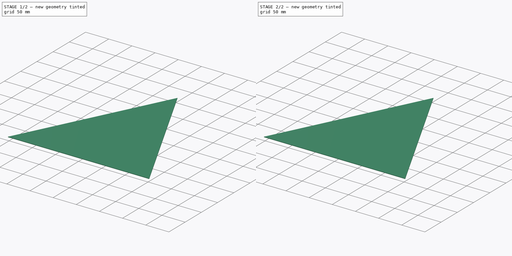
[diagram: build sequence overview — one tinted view per stage of 2, left to right]
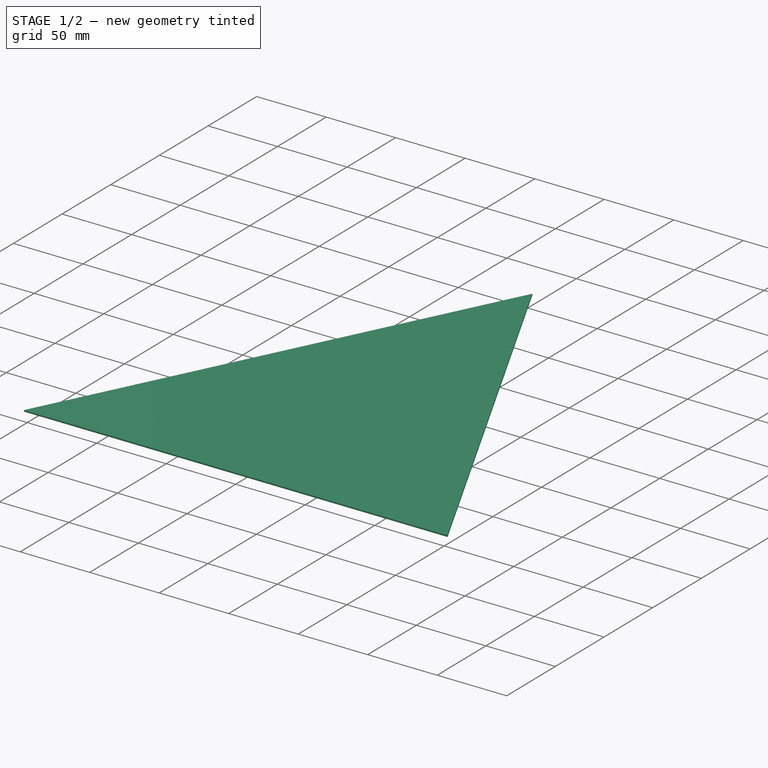
[diagram: stage 1 of 2 — iso view after this stage's code; geometry added in this stage tinted green]
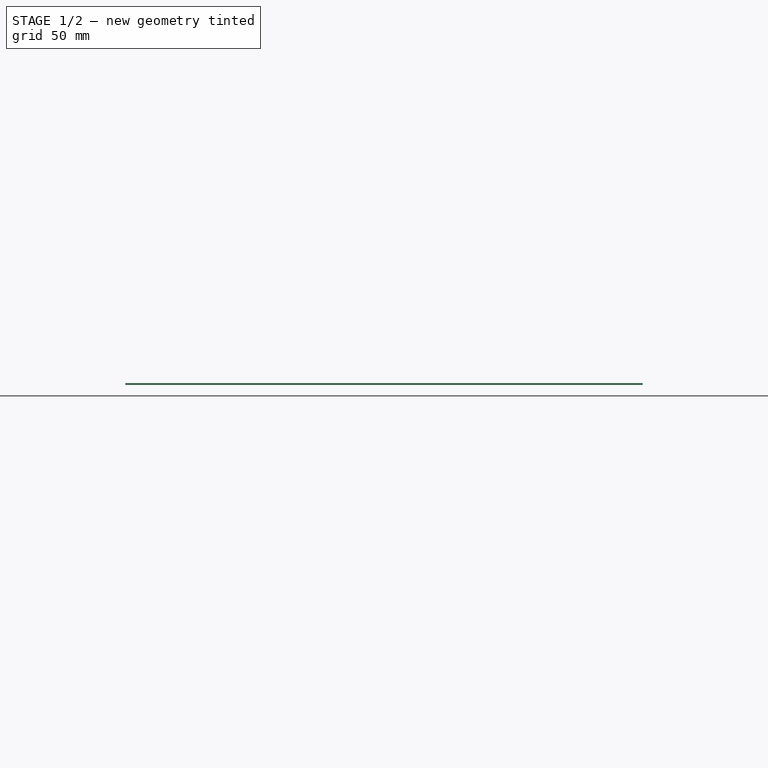
[diagram: stage 1 of 2 — front view after this stage's code; geometry added in this stage tinted green]
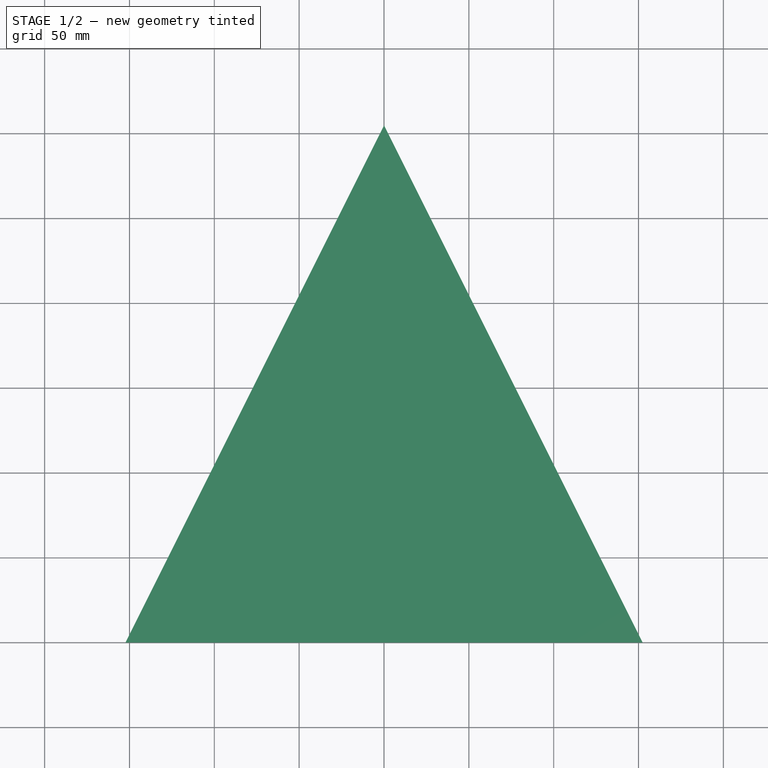
[diagram: stage 1 of 2 — top view after this stage's code; geometry added in this stage tinted green]
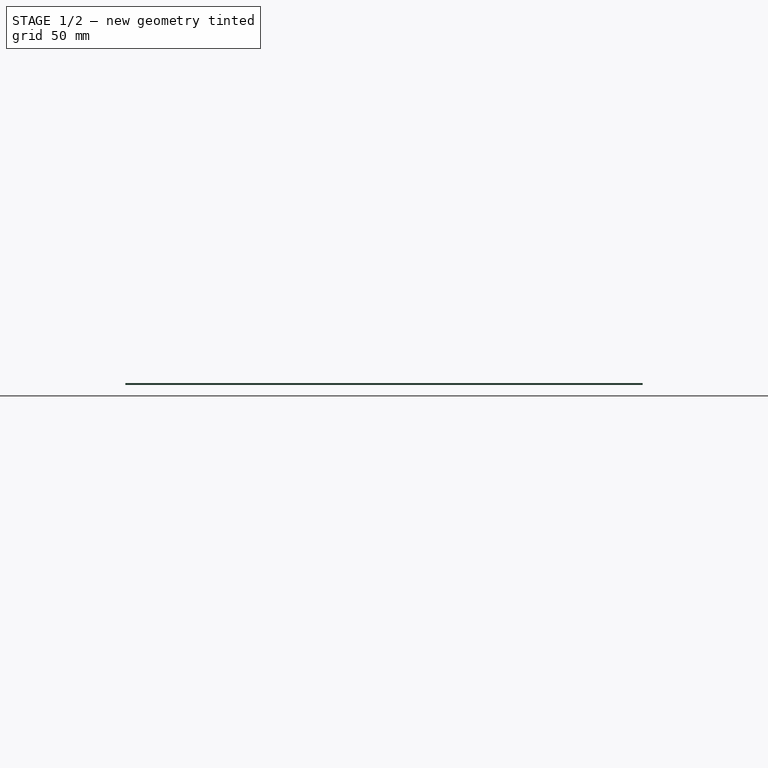
[diagram: stage 1 of 2 — right view after this stage's code; geometry added in this stage tinted green]
FCSTD DOCUMENT  (FreeCAD 0.19R22411 (Git))
Label: ala
License: All rights reserved
LicenseURL: http://en.wikipedia.org/wiki/All_rights_reserved
objects: Sketcher::SketchObject×2, PartDesign::Pad×2, PartDesign::Body×1
note: 7 computed .brp shape members not serialized (recipe doc carries the construction recipe); baked Part::Feature solids carry a one-line shape summary decoded from their .brp

FEATURE [Sketcher::SketchObject] Sketch
  sketch-geometry (4):
    g0: LineSegment StartX=-152.4 StartY=0 StartZ=0 EndX=0 EndY=304.8 EndZ=0
    g1: LineSegment StartX=3.3e-15 StartY=304.8 StartZ=0 EndX=152.4 EndY=0 EndZ=0
    g2: LineSegment StartX=-152.4 StartY=0 StartZ=0 EndX=0 EndY=0 EndZ=0
    g3: LineSegment StartX=0 StartY=0 StartZ=0 EndX=152.4 EndY=0 EndZ=0
  constraints (11):
    c: Coincident(g1,g0)
    c: DistanceY(g0,g0) = 304.8
    c: Coincident(g3,g1)
    c: Coincident(g2,g3)
    c: Horizontal(g2)
    c: Horizontal(g3)
    c: Equal(g2,g3)
    c: Coincident(g2,g0)
    c: Coincident(g2,g-1)
    c: DistanceX(g0,g1) = 304.8
    c: Equal(g0,g1)
FEATURE [PartDesign::Pad] Pad
  AllowMultiFace = false
  Length = 1
  Length2 = 100
  Profile = -> Sketch
  Type = 0
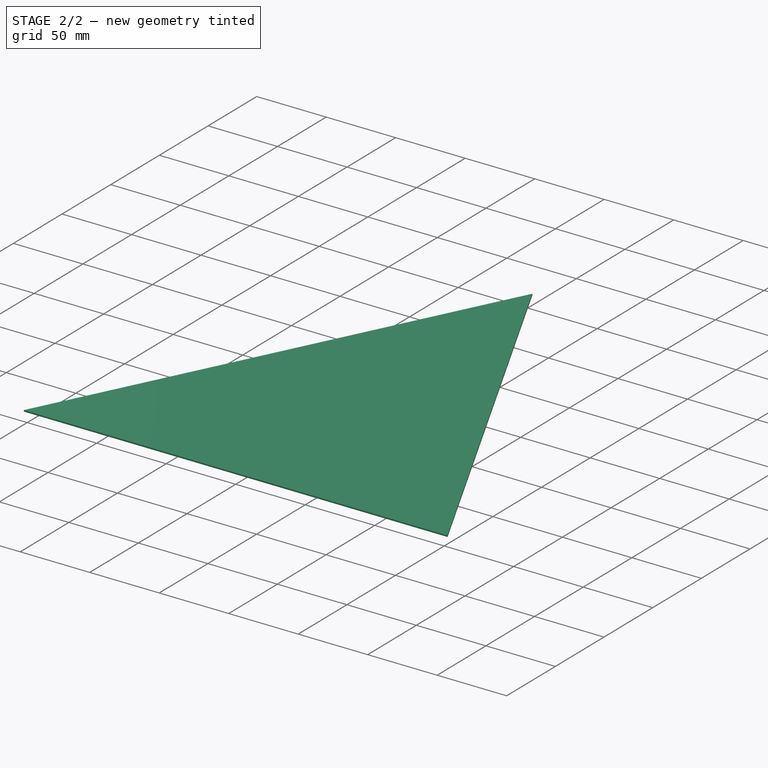
[diagram: stage 2 of 2 — iso view after this stage's code; geometry added in this stage tinted green]
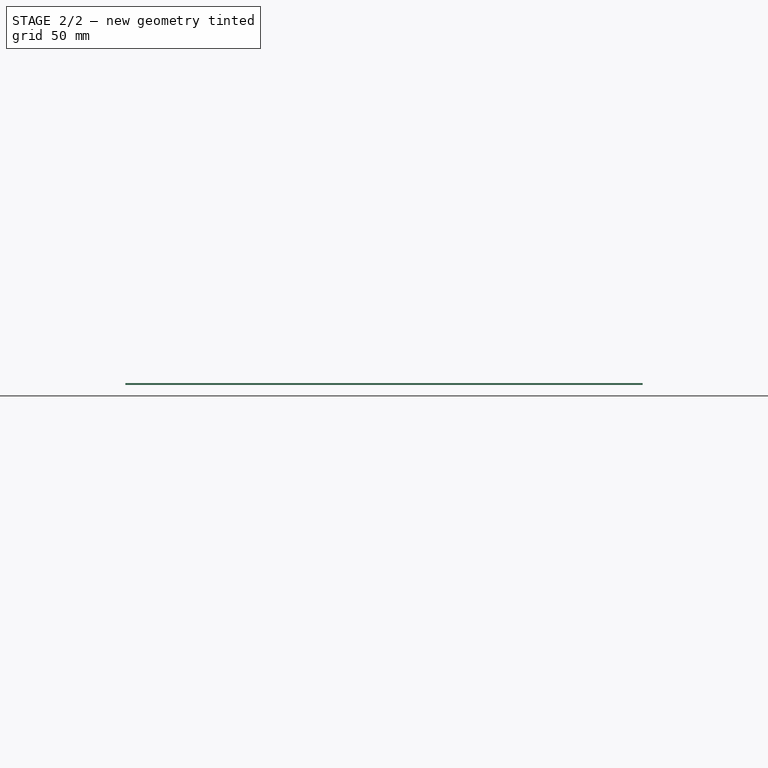
[diagram: stage 2 of 2 — front view after this stage's code; geometry added in this stage tinted green]
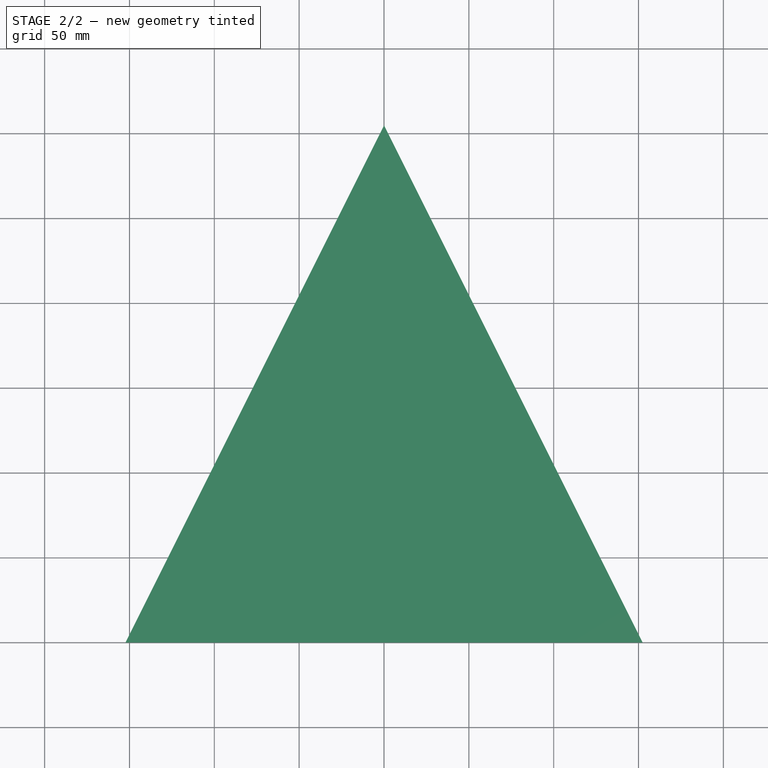
[diagram: stage 2 of 2 — top view after this stage's code; geometry added in this stage tinted green]
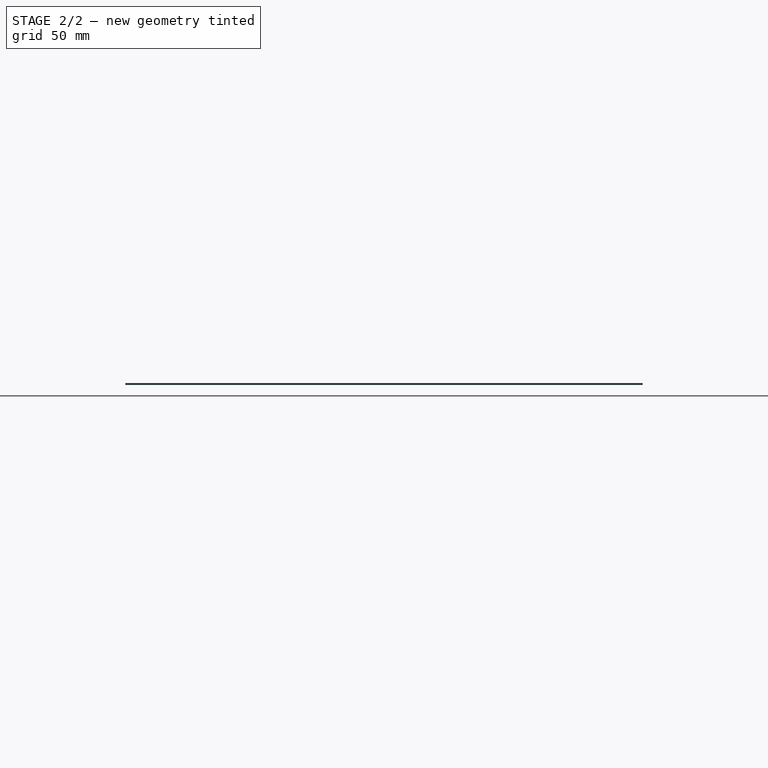
[diagram: stage 2 of 2 — right view after this stage's code; geometry added in this stage tinted green]
FEATURE [Sketcher::SketchObject] Sketch001
  MapMode = 5
  Placement = pos=(0,0,1) rot=(0,0,1;0rad)
  Support = -> [Pad]
  sketch-geometry (6):
    g0: LineSegment StartX=-152.4 StartY=0 StartZ=0 EndX=0 EndY=160 EndZ=0
    g1: LineSegment StartX=0 StartY=160 StartZ=0 EndX=152.4 EndY=0 EndZ=0
    g2: LineSegment [constr] StartX=0 StartY=0 StartZ=0 EndX=-152.4 EndY=0 EndZ=0
    g3: LineSegment [constr] StartX=0 StartY=0 StartZ=0 EndX=152.4 EndY=0 EndZ=0
    g4: LineSegment StartX=-152.4 StartY=0 StartZ=0 EndX=0 EndY=304.8 EndZ=0
    g5: LineSegment StartX=-8e-15 StartY=304.8 StartZ=0 EndX=152.4 EndY=0 EndZ=0
  constraints (16):
    c: Coincident(g0,g2)
    c: Coincident(g2,g-1)
    c: Coincident(g3,g2)
    c: Coincident(g3,g1)
    c: Coincident(g1,g0)
    c: Horizontal(g2)
    c: Horizontal(g3)
    c: Equal(g0,g1)
    c: Equal(g2,g3)
    c: DistanceX(g0,g1) = 304.8
    c: Coincident(g4,g0)
    c: Coincident(g5,g1)
    c: DistanceY(g1,g5) = 304.8
    c: Coincident(g5,g4)
    c: Equal(g5,g4)
    c: DistanceY(g1,g0) = 160
FEATURE [PartDesign::Pad] Pad001
  AllowMultiFace = false
  BaseFeature = -> Pad
  Length = 1
  Length2 = 100
  Profile = -> Sketch001
  Reversed = true
  Type = 0
FEATURE [PartDesign::Body] Body
  Group = -> [Sketch,Pad,Sketch001,Pad001]
  Origin = -> Origin
  Tip = -> Pad001
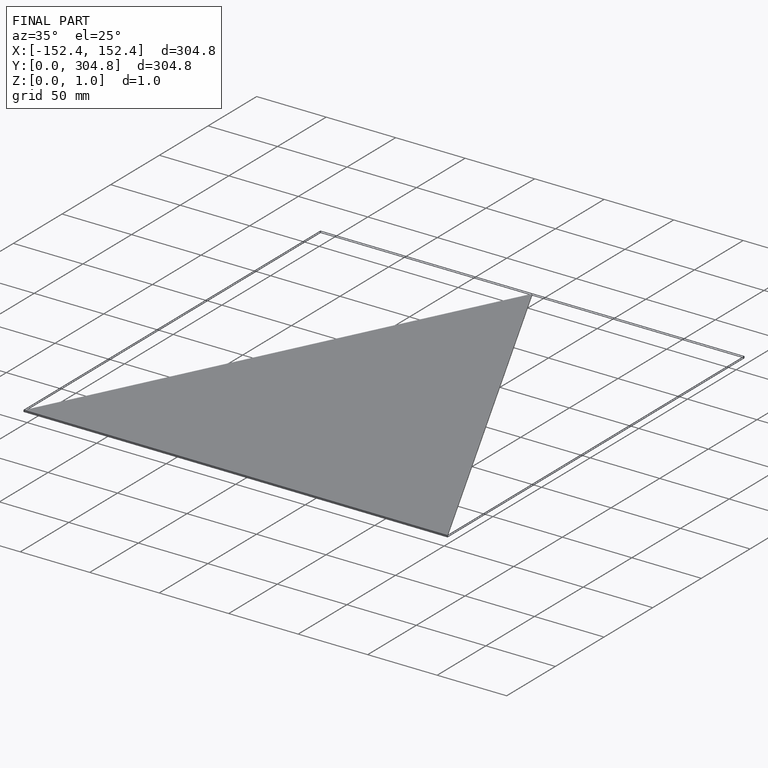
[diagram: finished part — iso view with bounding-box wireframe]
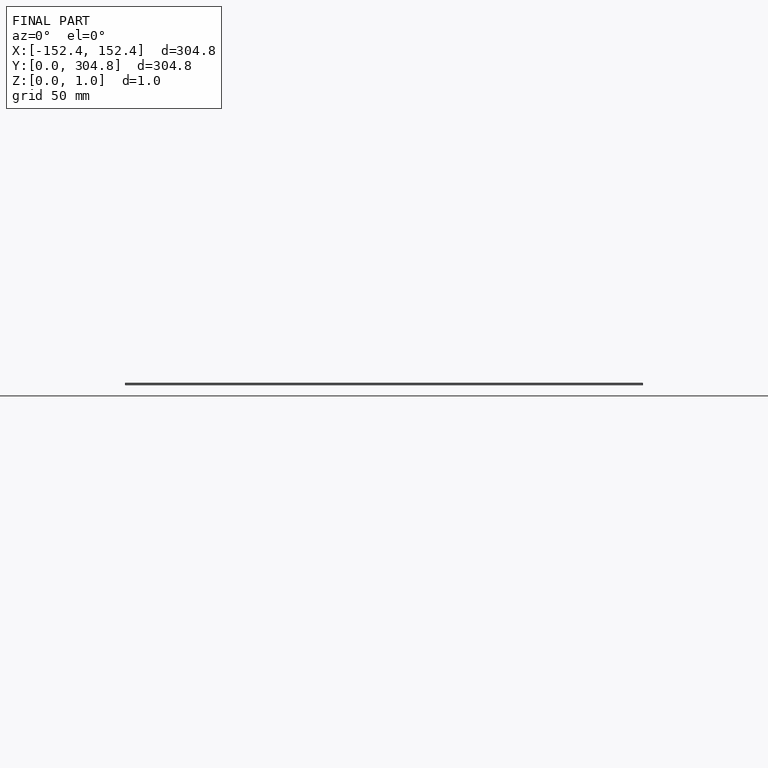
[diagram: finished part — front view with bounding-box wireframe]
